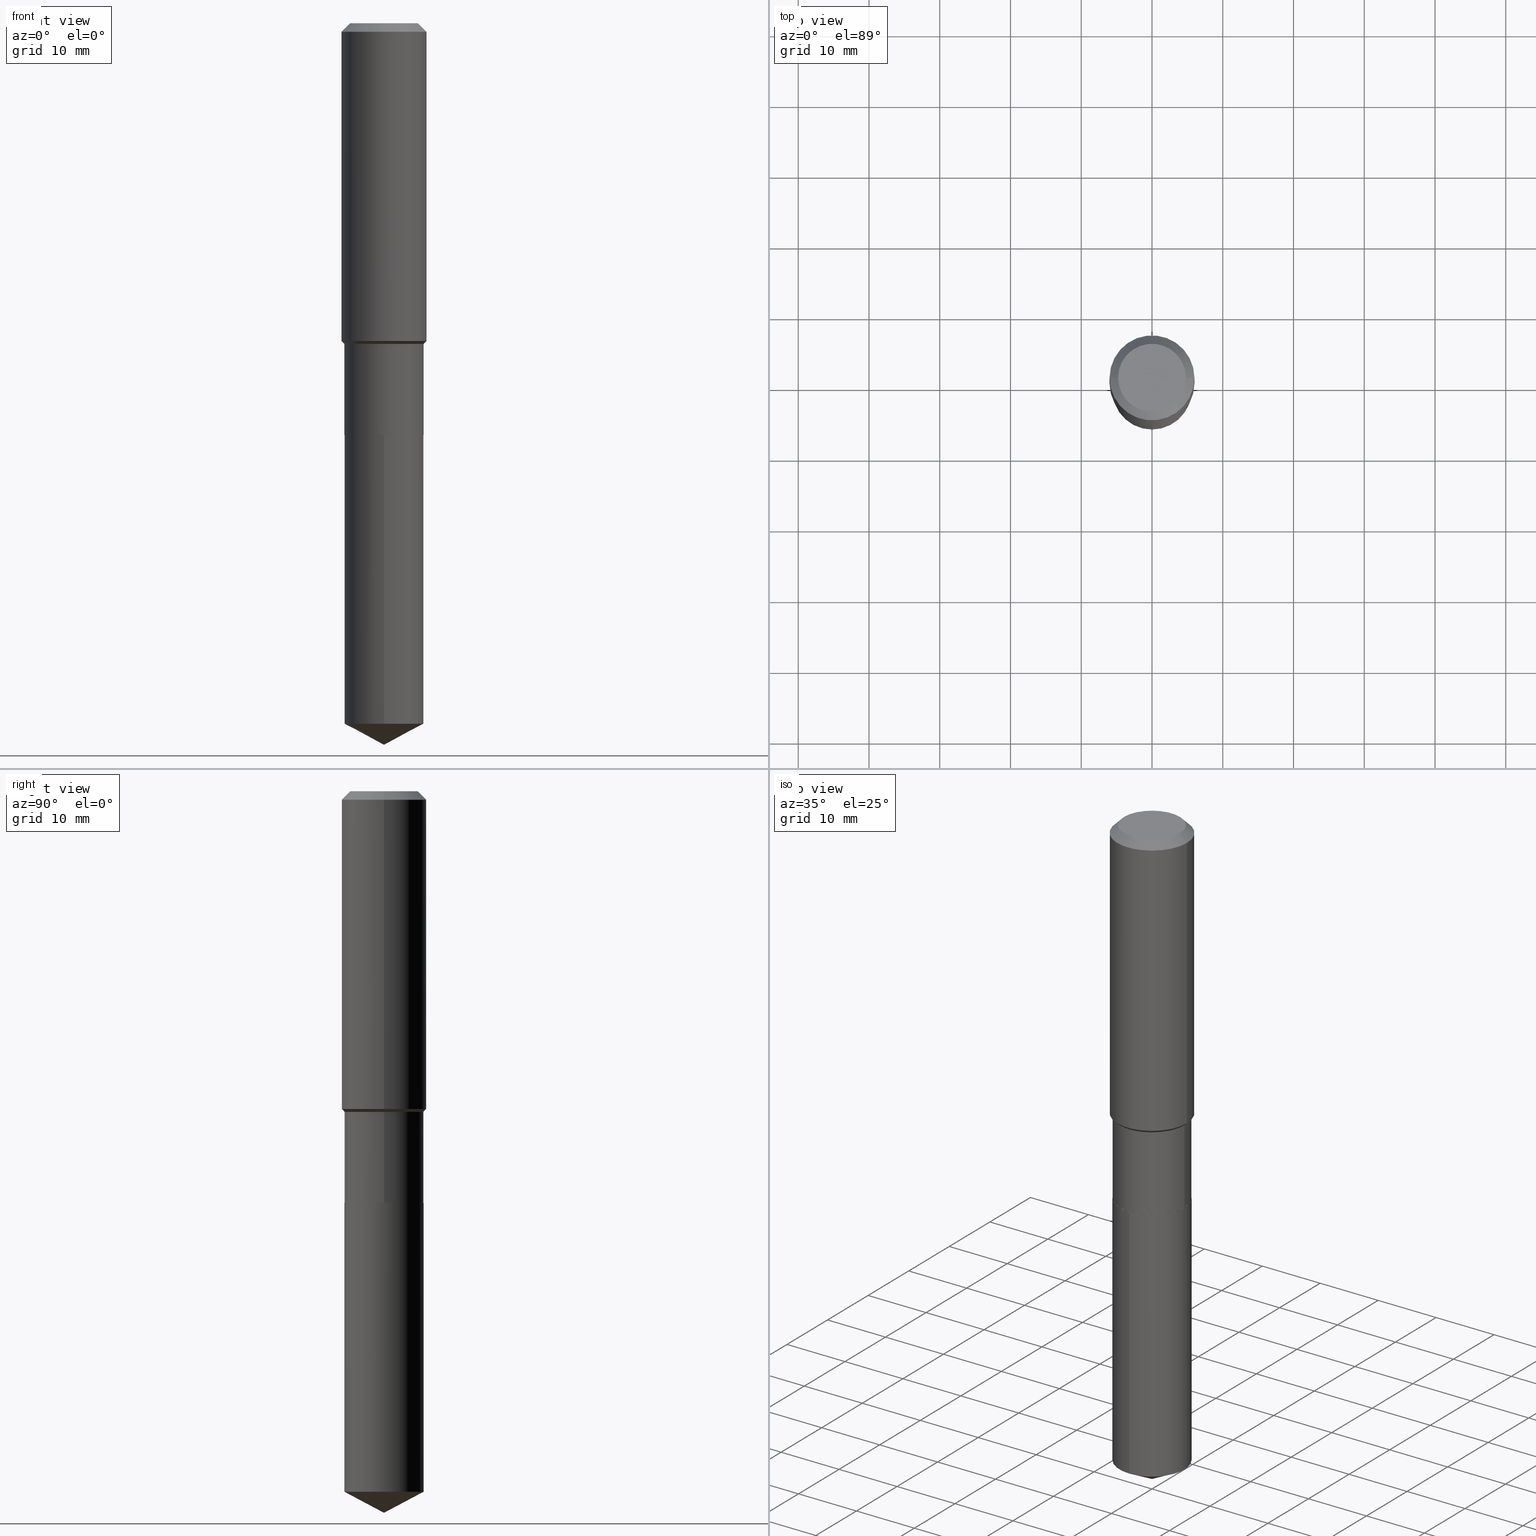
[diagram: canonical four-view strip — front | top / right | iso, engineering-drawing reading convention]
A machine part, canonical four-view strip (front | top / right | iso — engineering-drawing reading convention). The complete STEP part file that produces these views, byte-faithful:
ISO-10303-21;
HEADER;
FILE_DESCRIPTION (( 'STEP AP203' ),
    '1' );
FILE_NAME ('64682.STEP',
    '2024-04-24T18:45:47',
    ( '' ),
    ( '' ),
    'SwSTEP 2.0',
    'SolidWorks 2023',
    '' );
FILE_SCHEMA (( 'CONFIG_CONTROL_DESIGN' ));
ENDSEC;

DATA;
#1 = DIRECTION ( 'NONE',  ( 1.000000000000000000, -6.982962677686266711E-15, 4.876185090822587894E-29 ) ) ;
#2 = UNCERTAINTY_MEASURE_WITH_UNIT (LENGTH_MEASURE( 1.000000000000000082E-05 ), #104, 'distance_accuracy_value', 'NONE');
#3 = ORIENTED_EDGE ( 'NONE', *, *, #194, .T. ) ;
#4 = FACE_OUTER_BOUND ( 'NONE', #232, .T. ) ;
#5 = ADVANCED_FACE ( 'NONE', ( #22 ), #146, .T. ) ;
#6 = VERTEX_POINT ( 'NONE', #71 ) ;
#7 = CONICAL_SURFACE ( 'NONE', #475, 0.2199500000000000066, 0.7853981633975507526 ) ;
#8 = CIRCLE ( 'NONE', #236, 0.2361999999999999933 ) ;
#9 = LOCAL_TIME ( 14, 45, 47.00000000000000000, #110 ) ;
#10 = CYLINDRICAL_SURFACE ( 'NONE', #116, 0.2204500000000000071 ) ;
#11 = ORIENTED_EDGE ( 'NONE', *, *, #72, .T. ) ;
#12 = CARTESIAN_POINT ( 'NONE',  ( 5.603058128731384454E-29, -7.999682043557415076E-15, -2.291200000000000347 ) ) ;
#13 = EDGE_LOOP ( 'NONE', ( #173, #463, #206, #405 ) ) ;
#14 = DIRECTION ( 'NONE',  ( 0.7071067811866199593, -2.468850131083015945E-15, 0.7071067811864750752 ) ) ;
#15 = ORIENTED_EDGE ( 'NONE', *, *, #370, .F. ) ;
#16 = VECTOR ( 'NONE', #479, 39.37007874015748143 ) ;
#17 = AXIS2_PLACEMENT_3D ( 'NONE', #387, #237, #231 ) ;
#18 = CYLINDRICAL_SURFACE ( 'NONE', #69, 0.2362000000000001043 ) ;
#19 = DIRECTION ( 'NONE',  ( -2.445468806185136597E-29, 3.491481338843145583E-15, 1.000000000000000000 ) ) ;
#20 = CC_DESIGN_DATE_AND_TIME_ASSIGNMENT ( #98, #364, ( #318 ) ) ;
#21 = DIRECTION ( 'NONE',  ( -6.982962677686266711E-15, -1.000000000000000000, 3.717642994326508870E-15 ) ) ;
#22 = FACE_OUTER_BOUND ( 'NONE', #266, .T. ) ;
#23 = DIRECTION ( 'NONE',  ( -2.445387282739292518E-29, 3.491598085057620892E-15, 1.000000000000000000 ) ) ;
#24 = EDGE_CURVE ( 'NONE', #269, #6, #284, .T. ) ;
#25 = VECTOR ( 'NONE', #389, 39.37007874015748143 ) ;
#26 = PERSON_AND_ORGANIZATION_ROLE ( 'design_owner' ) ;
#27 = LINE ( 'NONE', #58, #16 ) ;
#28 =( NAMED_UNIT ( * ) SI_UNIT ( $, .STERADIAN. ) SOLID_ANGLE_UNIT ( ) );
#29 = VERTEX_POINT ( 'NONE', #290 ) ;
#30 = FACE_OUTER_BOUND ( 'NONE', #199, .T. ) ;
#31 = PERSON_AND_ORGANIZATION ( #182, #410 ) ;
#32 = CIRCLE ( 'NONE', #482, 0.1889600000000000168 ) ;
#33 = DIRECTION ( 'NONE',  ( -2.445468806185136597E-29, 3.491481338843145583E-15, 1.000000000000000000 ) ) ;
#34 = EDGE_CURVE ( 'NONE', #269, #419, #340, .T. ) ;
#35 = DIRECTION ( 'NONE',  ( 1.000000000000000000, -6.982962677686266711E-15, 0.000000000000000000 ) ) ;
#36 = CARTESIAN_POINT ( 'NONE',  ( -1.539394122295842009E-15, -0.2204500000000136350, -3.898484655790226849 ) ) ;
#37 = EDGE_CURVE ( 'NONE', #164, #29, #466, .T. ) ;
#38 = AXIS2_PLACEMENT_3D ( 'NONE', #99, #288, #109 ) ;
#39 = LINE ( 'NONE', #83, #308 ) ;
#40 = VECTOR ( 'NONE', #411, 39.37007874015748143 ) ;
#41 = ADVANCED_FACE ( 'NONE', ( #102 ), #7, .T. ) ;
#42 = CARTESIAN_POINT ( 'NONE',  ( 0.2204499999999999238, -7.768895127059877315E-15, -1.784200000000000008 ) ) ;
#43 = ORIENTED_EDGE ( 'NONE', *, *, #24, .F. ) ;
#44 = DIRECTION ( 'NONE',  ( -2.445468806185136597E-29, 3.491481338843145583E-15, 1.000000000000000000 ) ) ;
#45 = ORIENTED_EDGE ( 'NONE', *, *, #129, .F. ) ;
#46 = LINE ( 'NONE', #347, #153 ) ;
#47 = ORIENTED_EDGE ( 'NONE', *, *, #322, .T. ) ;
#48 = AXIS2_PLACEMENT_3D ( 'NONE', #88, #195, #1 ) ;
#49 = AXIS2_PLACEMENT_3D ( 'NONE', #335, #330, #189 ) ;
#50 = CC_DESIGN_APPROVAL ( #420, ( #223 ) ) ;
#51 = DIRECTION ( 'NONE',  ( 1.000000000000000000, -6.982962677686265133E-15, 0.000000000000000000 ) ) ;
#52 = ADVANCED_FACE ( 'NONE', ( #359 ), #84, .T. ) ;
#53 = ORIENTED_EDGE ( 'NONE', *, *, #407, .F. ) ;
#54 = EDGE_CURVE ( 'NONE', #419, #94, #27, .T. ) ;
#55 = DIRECTION ( 'NONE',  ( -2.445387282739292518E-29, 3.491598085057620892E-15, 1.000000000000000000 ) ) ;
#56 = VERTEX_POINT ( 'NONE', #144 ) ;
#57 = DIRECTION ( 'NONE',  ( -2.445468806185136597E-29, 3.491481338843145583E-15, 1.000000000000000000 ) ) ;
#58 = CARTESIAN_POINT ( 'NONE',  ( 0.2204499999999999793, -1.539394122295937264E-15, 1.074953170224213743E-29 ) ) ;
#59 = CC_DESIGN_PERSON_AND_ORGANIZATION_ASSIGNMENT ( #136, #279, ( #318 ) ) ;
#60 = AXIS2_PLACEMENT_3D ( 'NONE', #375, #226, #489 ) ;
#61 = CIRCLE ( 'NONE', #373, 0.2204500000000000071 ) ;
#62 = CARTESIAN_POINT ( 'NONE',  ( 5.601835394328292774E-29, -7.997936302887994361E-15, -2.290700000000000180 ) ) ;
#63 = DIRECTION ( 'NONE',  ( -2.445387282739292518E-29, 3.491598085057620892E-15, 1.000000000000000000 ) ) ;
#64 = ORIENTED_EDGE ( 'NONE', *, *, #256, .F. ) ;
#65 = PRODUCT_DEFINITION_SHAPE ( 'NONE', 'NONE',  #318 ) ;
#66 = DIRECTION ( 'NONE',  ( 1.000000000000000000, -6.982962677686266711E-15, 4.876176775795935793E-29 ) ) ;
#67 = DIRECTION ( 'NONE',  ( 6.273719981627762132E-15, 0.8829475928589292089, 0.4694715627858863094 ) ) ;
#68 = CONICAL_SURFACE ( 'NONE', #60, 0.2199500000000000066, 0.7853981633975507526 ) ;
#69 = AXIS2_PLACEMENT_3D ( 'NONE', #320, #57, #66 ) ;
#70 = CALENDAR_DATE ( 2024, 24, 4 ) ;
#71 = CARTESIAN_POINT ( 'NONE',  ( -0.2204499999999999238, -5.547327192842826592E-15, -1.784200000000000008 ) ) ;
#72 = EDGE_CURVE ( 'NONE', #56, #245, #467, .T. ) ;
#73 = APPROVAL_DATE_TIME ( #78, #420 ) ;
#74 = LINE ( 'NONE', #263, #229 ) ;
#75 = SHAPE_DEFINITION_REPRESENTATION ( #65, #171 ) ;
#76 = FACE_OUTER_BOUND ( 'NONE', #158, .T. ) ;
#77 = CC_DESIGN_PERSON_AND_ORGANIZATION_ASSIGNMENT ( #31, #224, ( #133 ) ) ;
#78 = DATE_AND_TIME ( #70, #427 ) ;
#79 = CONICAL_SURFACE ( 'NONE', #260, 74.04434902938341168, 1.082104136236485825 ) ;
#80 = DIRECTION ( 'NONE',  ( -0.7071067811866199593, 7.493145998870616062E-15, 0.7071067811864750752 ) ) ;
#81 = CARTESIAN_POINT ( 'NONE',  ( -4.713871149261273121E-47, 6.730158695841826722E-33, 1.927594061857931128E-18 ) ) ;
#82 = PERSON_AND_ORGANIZATION_ROLE ( 'design_supplier' ) ;
#83 = CARTESIAN_POINT ( 'NONE',  ( -0.2199500000000000066, -6.436843296253075656E-15, -2.291200000000000347 ) ) ;
#84 = CONICAL_SURFACE ( 'NONE', #357, 0.2361999999999999933, 0.7853981633974452814 ) ;
#85 = CARTESIAN_POINT ( 'NONE',  ( 0.000000000000000000, 0.000000000000000000, 0.000000000000000000 ) ) ;
#86 = FACE_OUTER_BOUND ( 'NONE', #429, .T. ) ;
#87 = ORIENTED_EDGE ( 'NONE', *, *, #281, .F. ) ;
#88 = CARTESIAN_POINT ( 'NONE',  ( -9.427742298522546243E-47, 1.346031739168365344E-32, 3.855188123715862256E-18 ) ) ;
#89 = ORIENTED_EDGE ( 'NONE', *, *, #337, .F. ) ;
#90 = EDGE_CURVE ( 'NONE', #238, #412, #378, .T. ) ;
#91 = CARTESIAN_POINT ( 'NONE',  ( -1.539394122295881453E-15, -0.2204500000000080007, -2.291199999999999459 ) ) ;
#92 = ORIENTED_EDGE ( 'NONE', *, *, #90, .T. ) ;
#93 = DIRECTION ( 'NONE',  ( -2.445468806185136597E-29, 3.491481338843145583E-15, 1.000000000000000000 ) ) ;
#94 = VERTEX_POINT ( 'NONE', #478 ) ;
#95 = APPROVAL_ROLE ( '' ) ;
#96 = ORIENTED_EDGE ( 'NONE', *, *, #301, .T. ) ;
#97 = EDGE_CURVE ( 'NONE', #126, #29, #212, .T. ) ;
#98 = DATE_AND_TIME ( #101, #436 ) ;
#99 = CARTESIAN_POINT ( 'NONE',  ( 9.533491585742809254E-29, -1.361167406985707085E-14, -3.898484655790227293 ) ) ;
#100 = ORIENTED_EDGE ( 'NONE', *, *, #37, .F. ) ;
#101 = CALENDAR_DATE ( 2024, 24, 4 ) ;
#102 = FACE_OUTER_BOUND ( 'NONE', #367, .T. ) ;
#103 = CC_DESIGN_PERSON_AND_ORGANIZATION_ASSIGNMENT ( #476, #26, ( #434 ) ) ;
#104 =( CONVERSION_BASED_UNIT ( 'INCH', #435 ) LENGTH_UNIT ( ) NAMED_UNIT ( #448 ) );
#105 = ADVANCED_FACE ( 'NONE', ( #177 ), #459, .T. ) ;
#106 = VERTEX_POINT ( 'NONE', #369 ) ;
#107 = CIRCLE ( 'NONE', #315, 0.2204500000000000071 ) ;
#108 = APPROVAL_PERSON_ORGANIZATION ( #178, #420, #289 ) ;
#109 = DIRECTION ( 'NONE',  ( -6.982962677686266711E-15, -1.000000000000000000, 2.478428662884339509E-15 ) ) ;
#110 = COORDINATED_UNIVERSAL_TIME_OFFSET ( 5, 0, .BEHIND. ) ;
#111 = DIRECTION ( 'NONE',  ( 1.000000000000000000, -6.982962677686266711E-15, 4.876185090822587894E-29 ) ) ;
#112 = EDGE_CURVE ( 'NONE', #142, #450, #32, .T. ) ;
#113 = DIRECTION ( 'NONE',  ( -2.445468806185136597E-29, 3.491481338843145583E-15, 1.000000000000000000 ) ) ;
#114 = ADVANCED_FACE ( 'NONE', ( #454 ), #490, .F. ) ;
#115 = CALENDAR_DATE ( 2024, 24, 4 ) ;
#116 = AXIS2_PLACEMENT_3D ( 'NONE', #264, #239, #270 ) ;
#117 = LINE ( 'NONE', #408, #349 ) ;
#118 = APPROVAL_PERSON_ORGANIZATION ( #398, #400, #95 ) ;
#119 = ORIENTED_EDGE ( 'NONE', *, *, #97, .T. ) ;
#120 = DIRECTION ( 'NONE',  ( 1.000000000000000000, -6.982962677686265133E-15, 0.000000000000000000 ) ) ;
#121 = LINE ( 'NONE', #167, #169 ) ;
#122 = CARTESIAN_POINT ( 'NONE',  ( 4.363205443995520859E-29, -6.229501004763940248E-15, -1.784200000000000008 ) ) ;
#123 = AXIS2_PLACEMENT_3D ( 'NONE', #455, #486, #120 ) ;
#124 = EDGE_LOOP ( 'NONE', ( #437, #168, #140, #469 ) ) ;
#125 = DIRECTION ( 'NONE',  ( 0.7071067811865453523, -7.319954787623248157E-15, -0.7071067811865496822 ) ) ;
#126 = VERTEX_POINT ( 'NONE', #376 ) ;
#127 = CARTESIAN_POINT ( 'NONE',  ( -8.645496137381040162E-28, 1.234435485964623192E-13, 35.35437874015748605 ) ) ;
#128 = ORIENTED_EDGE ( 'NONE', *, *, #34, .F. ) ;
#129 = EDGE_CURVE ( 'NONE', #142, #196, #117, .T. ) ;
#130 = DIRECTION ( 'NONE',  ( 1.000000000000000000, -6.982962677686265922E-15, 4.876176775795935793E-29 ) ) ;
#131 = EDGE_LOOP ( 'NONE', ( #89, #11, #3, #277 ) ) ;
#132 = AXIS2_PLACEMENT_3D ( 'NONE', #319, #471, #280 ) ;
#133 = SECURITY_CLASSIFICATION ( '', '', #368 ) ;
#134 = ADVANCED_FACE ( 'NONE', ( #30 ), #68, .T. ) ;
#135 = ORIENTED_EDGE ( 'NONE', *, *, #407, .T. ) ;
#136 = PERSON_AND_ORGANIZATION ( #182, #410 ) ;
#137 = EDGE_LOOP ( 'NONE', ( #53, #119, #100 ) ) ;
#138 = EDGE_CURVE ( 'NONE', #6, #56, #155, .T. ) ;
#139 =( NAMED_UNIT ( * ) PLANE_ANGLE_UNIT ( ) SI_UNIT ( $, .RADIAN. ) );
#140 = ORIENTED_EDGE ( 'NONE', *, *, #356, .F. ) ;
#141 = CIRCLE ( 'NONE', #170, 0.2204500000000000071 ) ;
#142 = VERTEX_POINT ( 'NONE', #298 ) ;
#143 = APPROVAL_STATUS ( 'not_yet_approved' ) ;
#144 = CARTESIAN_POINT ( 'NONE',  ( -0.2362000000000002153, -4.496208231811802153E-15, -1.768449999999999855 ) ) ;
#145 = DATE_AND_TIME ( #413, #9 ) ;
#146 = CYLINDRICAL_SURFACE ( 'NONE', #283, 0.2204500000000000071 ) ;
#147 = CARTESIAN_POINT ( 'NONE',  ( 1.155239464041865506E-30, -1.649375784469511859E-16, -0.04724000000000028177 ) ) ;
#148 = DIRECTION ( 'NONE',  ( 1.000000000000000000, -6.982962677686267499E-15, 0.000000000000000000 ) ) ;
#149 = DATE_AND_TIME ( #115, #332 ) ;
#150 = DIRECTION ( 'NONE',  ( -1.000000000000000000, 6.982962677686265922E-15, -4.876176775795935793E-29 ) ) ;
#151 = EDGE_LOOP ( 'NONE', ( #388, #47 ) ) ;
#152 = PERSON_AND_ORGANIZATION ( #182, #410 ) ;
#153 = VECTOR ( 'NONE', #14, 39.37007874015748143 ) ;
#154 = DIRECTION ( 'NONE',  ( -2.445468806185136877E-29, 3.491481338843145188E-15, 1.000000000000000000 ) ) ;
#155 = LINE ( 'NONE', #225, #40 ) ;
#156 = FACE_OUTER_BOUND ( 'NONE', #443, .T. ) ;
#157 = APPLICATION_CONTEXT ( 'configuration controlled 3d designs of mechanical parts and assemblies' ) ;
#158 = EDGE_LOOP ( 'NONE', ( #193, #241, #15, #87 ) ) ;
#159 = LINE ( 'NONE', #42, #341 ) ;
#160 = CC_DESIGN_PERSON_AND_ORGANIZATION_ASSIGNMENT ( #302, #82, ( #223 ) ) ;
#161 = AXIS2_PLACEMENT_3D ( 'NONE', #262, #113, #414 ) ;
#162 = ORIENTED_EDGE ( 'NONE', *, *, #112, .F. ) ;
#163 = DIRECTION ( 'NONE',  ( -2.445387282739292518E-29, 3.491598085057620892E-15, 1.000000000000000000 ) ) ;
#164 = VERTEX_POINT ( 'NONE', #36 ) ;
#165 = CARTESIAN_POINT ( 'NONE',  ( 0.2361999999999999933, -1.814313362916447440E-15, -0.04724000000000028177 ) ) ;
#166 = EDGE_LOOP ( 'NONE', ( #432, #314, #180, #45 ) ) ;
#167 = CARTESIAN_POINT ( 'NONE',  ( -0.2362000000000001043, 1.678301941865357380E-15, -1.161852468318209317E-29 ) ) ;
#168 = ORIENTED_EDGE ( 'NONE', *, *, #337, .T. ) ;
#169 = VECTOR ( 'NONE', #384, 39.37007874015748143 ) ;
#170 = AXIS2_PLACEMENT_3D ( 'NONE', #396, #216, #211 ) ;
#171 = ADVANCED_BREP_SHAPE_REPRESENTATION ( '64682', ( #344, #363, #417 ), #451 ) ;
#172 = CARTESIAN_POINT ( 'NONE',  ( 5.603058128731384454E-29, -7.999682043557415076E-15, -2.291200000000000347 ) ) ;
#173 = ORIENTED_EDGE ( 'NONE', *, *, #259, .T. ) ;
#174 = DIRECTION ( 'NONE',  ( -2.445468806185136597E-29, 3.491481338843145583E-15, 1.000000000000000000 ) ) ;
#175 = CARTESIAN_POINT ( 'NONE',  ( 5.603058128731384454E-29, -7.999682043557415076E-15, -2.291200000000000347 ) ) ;
#176 = APPROVAL_STATUS ( 'not_yet_approved' ) ;
#177 = FACE_OUTER_BOUND ( 'NONE', #166, .T. ) ;
#178 = PERSON_AND_ORGANIZATION ( #182, #410 ) ;
#179 = ORIENTED_EDGE ( 'NONE', *, *, #474, .F. ) ;
#180 = ORIENTED_EDGE ( 'NONE', *, *, #356, .T. ) ;
#181 = ADVANCED_FACE ( 'NONE', ( #76 ), #416, .T. ) ;
#182 = PERSON ( 'UNSPECIFIED', 'UNSPECIFIED', 'UNSPECIFIED', ('UNSPECIFIED'), ('UNSPECIFIED'), ('UNSPECIFIED') ) ;
#183 = APPROVAL_STATUS ( 'not_yet_approved' ) ;
#184 = CYLINDRICAL_SURFACE ( 'NONE', #386, 0.2362000000000001043 ) ;
#185 = APPLICATION_CONTEXT ( 'configuration controlled 3d designs of mechanical parts and assemblies' ) ;
#186 = CIRCLE ( 'NONE', #294, 0.2204500000000000071 ) ;
#187 = DIRECTION ( 'NONE',  ( -2.445468806185136597E-29, 3.491481338843145583E-15, 1.000000000000000000 ) ) ;
#188 = CARTESIAN_POINT ( 'NONE',  ( 5.603058128731384454E-29, -7.999682043557415076E-15, -2.291200000000000347 ) ) ;
#189 = DIRECTION ( 'NONE',  ( 6.982962677686265922E-15, 1.000000000000000000, -3.491598085057620892E-15 ) ) ;
#190 = ADVANCED_FACE ( 'NONE', ( #257 ), #304, .F. ) ;
#191 = DIRECTION ( 'NONE',  ( -2.445387282739292518E-29, 3.491598085057620892E-15, 1.000000000000000000 ) ) ;
#192 = FACE_OUTER_BOUND ( 'NONE', #137, .T. ) ;
#193 = ORIENTED_EDGE ( 'NONE', *, *, #205, .T. ) ;
#194 = EDGE_CURVE ( 'NONE', #245, #299, #74, .T. ) ;
#195 = DIRECTION ( 'NONE',  ( -2.445468806185136597E-29, 3.491481338843145583E-15, 1.000000000000000000 ) ) ;
#196 = VERTEX_POINT ( 'NONE', #303 ) ;
#197 = CYLINDRICAL_SURFACE ( 'NONE', #449, 0.2204499999999999793 ) ;
#198 = CIRCLE ( 'NONE', #123, 0.2204499999999999238 ) ;
#199 = EDGE_LOOP ( 'NONE', ( #243, #312, #251, #128 ) ) ;
#200 = AXIS2_PLACEMENT_3D ( 'NONE', #428, #93, #305 ) ;
#201 = CARTESIAN_POINT ( 'NONE',  ( 4.363205443995520859E-29, -6.229501004763940248E-15, -1.784200000000000008 ) ) ;
#202 = ORIENTED_EDGE ( 'NONE', *, *, #259, .F. ) ;
#203 = CYLINDRICAL_SURFACE ( 'NONE', #200, 0.2204499999999999793 ) ;
#204 = ORIENTED_EDGE ( 'NONE', *, *, #474, .T. ) ;
#205 = EDGE_CURVE ( 'NONE', #94, #6, #198, .T. ) ;
#206 = ORIENTED_EDGE ( 'NONE', *, *, #205, .F. ) ;
#207 = VECTOR ( 'NONE', #67, 39.37007874015748854 ) ;
#208 = CARTESIAN_POINT ( 'NONE',  ( 5.603058128731384454E-29, -7.999682043557415076E-15, -2.291200000000000347 ) ) ;
#209 = DIRECTION ( 'NONE',  ( -6.982962677686266711E-15, -1.000000000000000000, 3.717642994326508870E-15 ) ) ;
#210 = PRODUCT_RELATED_PRODUCT_CATEGORY ( 'detail', '', ( #434 ) ) ;
#211 = DIRECTION ( 'NONE',  ( -6.982962677686266711E-15, -1.000000000000000000, 2.478428662884339509E-15 ) ) ;
#212 = LINE ( 'NONE', #362, #207 ) ;
#213 = COORDINATED_UNIVERSAL_TIME_OFFSET ( 5, 0, .BEHIND. ) ;
#214 = DIRECTION ( 'NONE',  ( 2.445468806185136597E-29, -3.491481338843145583E-15, -1.000000000000000000 ) ) ;
#215 = AXIS2_PLACEMENT_3D ( 'NONE', #127, #311, #272 ) ;
#216 = DIRECTION ( 'NONE',  ( -2.445387282739292518E-29, 3.491598085057620892E-15, 1.000000000000000000 ) ) ;
#217 = DIRECTION ( 'NONE',  ( -2.445468806185136877E-29, 3.491481338843145188E-15, 1.000000000000000000 ) ) ;
#218 = EDGE_CURVE ( 'NONE', #412, #269, #39, .T. ) ;
#219 = PERSON_AND_ORGANIZATION_ROLE ( 'creator' ) ;
#220 = CARTESIAN_POINT ( 'NONE',  ( 0.000000000000000000, 0.000000000000000000, 0.000000000000000000 ) ) ;
#221 = DIRECTION ( 'NONE',  ( -1.000000000000000000, 6.982962677686266711E-15, 0.000000000000000000 ) ) ;
#222 = VECTOR ( 'NONE', #163, 39.37007874015748143 ) ;
#223 = PRODUCT_DEFINITION_FORMATION_WITH_SPECIFIED_SOURCE ( 'ANY', '', #434, .NOT_KNOWN. ) ;
#224 = PERSON_AND_ORGANIZATION_ROLE ( 'classification_officer' ) ;
#225 = CARTESIAN_POINT ( 'NONE',  ( -0.2204499999999999238, -4.663109543780799930E-15, -1.784200000000000008 ) ) ;
#226 = DIRECTION ( 'NONE',  ( -2.445468806185136597E-29, 3.491481338843145583E-15, 1.000000000000000000 ) ) ;
#227 = APPROVAL_DATE_TIME ( #149, #297 ) ;
#228 = CARTESIAN_POINT ( 'NONE',  ( -8.645496137381040162E-28, 1.234435485964623192E-13, 35.35437874015748605 ) ) ;
#229 = VECTOR ( 'NONE', #154, 39.37007874015748143 ) ;
#230 = CARTESIAN_POINT ( 'NONE',  ( 1.155239464041865506E-30, -1.649375784469511859E-16, -0.04724000000000028177 ) ) ;
#231 = DIRECTION ( 'NONE',  ( 1.000000000000000000, -6.982962677686266711E-15, 0.000000000000000000 ) ) ;
#232 = EDGE_LOOP ( 'NONE', ( #43, #271, #461, #235 ) ) ;
#233 = ADVANCED_FACE ( 'NONE', ( #258 ), #79, .T. ) ;
#234 = LINE ( 'NONE', #268, #222 ) ;
#235 = ORIENTED_EDGE ( 'NONE', *, *, #377, .F. ) ;
#236 = AXIS2_PLACEMENT_3D ( 'NONE', #230, #381, #345 ) ;
#237 = DIRECTION ( 'NONE',  ( -2.445468806185136597E-29, 3.491481338843145583E-15, 1.000000000000000000 ) ) ;
#238 = VERTEX_POINT ( 'NONE', #343 ) ;
#239 = DIRECTION ( 'NONE',  ( -2.445387282739292518E-29, 3.491598085057620892E-15, 1.000000000000000000 ) ) ;
#240 = ADVANCED_FACE ( 'NONE', ( #406 ), #184, .T. ) ;
#241 = ORIENTED_EDGE ( 'NONE', *, *, #138, .T. ) ;
#242 = CARTESIAN_POINT ( 'NONE',  ( 0.000000000000000000, 0.000000000000000000, 0.000000000000000000 ) ) ;
#243 = ORIENTED_EDGE ( 'NONE', *, *, #218, .F. ) ;
#244 = FACE_OUTER_BOUND ( 'NONE', #124, .T. ) ;
#245 = VERTEX_POINT ( 'NONE', #371 ) ;
#246 = VECTOR ( 'NONE', #125, 39.37007874015748143 ) ;
#247 = AXIS2_PLACEMENT_3D ( 'NONE', #122, #174, #358 ) ;
#248 = EDGE_CURVE ( 'NONE', #196, #299, #404, .T. ) ;
#249 = APPLICATION_PROTOCOL_DEFINITION ( 'international standard', 'config_control_design', 1994, #185 ) ;
#250 = CARTESIAN_POINT ( 'NONE',  ( 4.324689310298104338E-29, -6.174510173677160125E-15, -1.768449999999999855 ) ) ;
#251 = ORIENTED_EDGE ( 'NONE', *, *, #393, .T. ) ;
#252 = APPLICATION_PROTOCOL_DEFINITION ( 'international standard', 'config_control_design', 1994, #157 ) ;
#253 = ORIENTED_EDGE ( 'NONE', *, *, #248, .T. ) ;
#254 = AXIS2_PLACEMENT_3D ( 'NONE', #250, #19, #399 ) ;
#255 = DIRECTION ( 'NONE',  ( -6.982962677686265133E-15, -1.000000000000000000, 3.541896320645566785E-15 ) ) ;
#256 = EDGE_CURVE ( 'NONE', #412, #238, #331, .T. ) ;
#257 = FACE_OUTER_BOUND ( 'NONE', #441, .T. ) ;
#258 = FACE_OUTER_BOUND ( 'NONE', #465, .T. ) ;
#259 = EDGE_CURVE ( 'NONE', #419, #269, #107, .T. ) ;
#260 = AXIS2_PLACEMENT_3D ( 'NONE', #228, #191, #255 ) ;
#261 = APPROVAL_PERSON_ORGANIZATION ( #152, #297, #452 ) ;
#262 = CARTESIAN_POINT ( 'NONE',  ( 4.363205443995520859E-29, -6.229501004763940248E-15, -1.784200000000000008 ) ) ;
#263 = CARTESIAN_POINT ( 'NONE',  ( 0.2362000000000001043, -1.649375784469496920E-15, 1.151752954443000508E-29 ) ) ;
#264 = CARTESIAN_POINT ( 'NONE',  ( 5.603058128731384454E-29, -7.999682043557415076E-15, -2.291200000000000347 ) ) ;
#265 = EDGE_CURVE ( 'NONE', #450, #299, #445, .T. ) ;
#266 = EDGE_LOOP ( 'NONE', ( #382, #348, #96, #273 ) ) ;
#267 = CONICAL_SURFACE ( 'NONE', #247, 0.2204499999999999238, 0.7853981633974492782 ) ;
#268 = CARTESIAN_POINT ( 'NONE',  ( 1.566391460983196722E-15, 0.2204499999999920135, -2.291200000000000792 ) ) ;
#269 = VERTEX_POINT ( 'NONE', #354 ) ;
#270 = DIRECTION ( 'NONE',  ( -6.982962677686266711E-15, -1.000000000000000000, 3.717642994326508870E-15 ) ) ;
#271 = ORIENTED_EDGE ( 'NONE', *, *, #34, .T. ) ;
#272 = DIRECTION ( 'NONE',  ( -6.982962677686265133E-15, -1.000000000000000000, 3.541896320645566785E-15 ) ) ;
#273 = ORIENTED_EDGE ( 'NONE', *, *, #481, .F. ) ;
#274 = ADVANCED_FACE ( 'NONE', ( #4 ), #197, .T. ) ;
#275 = AXIS2_PLACEMENT_3D ( 'NONE', #325, #339, #221 ) ;
#276 = FACE_OUTER_BOUND ( 'NONE', #13, .T. ) ;
#277 = ORIENTED_EDGE ( 'NONE', *, *, #248, .F. ) ;
#278 = ORIENTED_EDGE ( 'NONE', *, *, #281, .T. ) ;
#279 = PERSON_AND_ORGANIZATION_ROLE ( 'creator' ) ;
#280 = DIRECTION ( 'NONE',  ( 1.000000000000000000, -6.982962677686265133E-15, 0.000000000000000000 ) ) ;
#281 = EDGE_CURVE ( 'NONE', #94, #245, #159, .T. ) ;
#282 = DIRECTION ( 'NONE',  ( 0.000000000000000000, 0.000000000000000000, 1.000000000000000000 ) ) ;
#283 = AXIS2_PLACEMENT_3D ( 'NONE', #175, #23, #209 ) ;
#284 = LINE ( 'NONE', #291, #433 ) ;
#285 = CIRCLE ( 'NONE', #293, 0.2204499999999999238 ) ;
#286 = CC_DESIGN_SECURITY_CLASSIFICATION ( #133, ( #223 ) ) ;
#287 = COORDINATED_UNIVERSAL_TIME_OFFSET ( 5, 0, .BEHIND. ) ;
#288 = DIRECTION ( 'NONE',  ( -2.445387282739292518E-29, 3.491598085057620892E-15, 1.000000000000000000 ) ) ;
#289 = APPROVAL_ROLE ( '' ) ;
#290 = CARTESIAN_POINT ( 'NONE',  ( 1.566391460983236165E-15, 0.2204499999999864068, -3.898484655790228182 ) ) ;
#291 = CARTESIAN_POINT ( 'NONE',  ( -0.2204499999999999793, 1.566391460983140713E-15, -1.084379240646693833E-29 ) ) ;
#292 = CLOSED_SHELL ( 'NONE', ( #41, #105, #487, #181, #457, #274, #468, #240, #52, #114, #453, #134 ) ) ;
#293 = AXIS2_PLACEMENT_3D ( 'NONE', #201, #44, #51 ) ;
#294 = AXIS2_PLACEMENT_3D ( 'NONE', #172, #361, #430 ) ;
#295 = DIRECTION ( 'NONE',  ( 1.000000000000000000, -6.982962677686265133E-15, 0.000000000000000000 ) ) ;
#296 = DIRECTION ( 'NONE',  ( -0.7071067811865453523, 2.468850131082234184E-15, -0.7071067811865496822 ) ) ;
#297 = APPROVAL ( #183, 'UNSPECIFIED' ) ;
#298 = CARTESIAN_POINT ( 'NONE',  ( -0.1889600000000000168, 1.401969416799070942E-15, 3.855188123706346622E-18 ) ) ;
#299 = VERTEX_POINT ( 'NONE', #165 ) ;
#300 = CIRCLE ( 'NONE', #48, 0.1889600000000000168 ) ;
#301 = EDGE_CURVE ( 'NONE', #164, #106, #418, .T. ) ;
#302 = PERSON_AND_ORGANIZATION ( #182, #410 ) ;
#303 = CARTESIAN_POINT ( 'NONE',  ( -0.2361999999999999933, -1.491421934196697942E-15, -0.04724000000000028177 ) ) ;
#304 = PLANE ( 'NONE',  #49 ) ;
#305 = DIRECTION ( 'NONE',  ( 1.000000000000000000, -6.982962677686265922E-15, 4.876176775795934672E-29 ) ) ;
#306 = EDGE_CURVE ( 'NONE', #29, #439, #234, .T. ) ;
#307 = EDGE_LOOP ( 'NONE', ( #317, #162, #385, #253 ) ) ;
#308 = VECTOR ( 'NONE', #80, 39.37007874015748143 ) ;
#309 = CARTESIAN_POINT ( 'NONE',  ( 0.2361999999999999933, -1.785387205520586782E-15, -0.04724000000000028177 ) ) ;
#310 = ORIENTED_EDGE ( 'NONE', *, *, #377, .T. ) ;
#311 = DIRECTION ( 'NONE',  ( -2.445387282739292518E-29, 3.491598085057620892E-15, 1.000000000000000000 ) ) ;
#312 = ORIENTED_EDGE ( 'NONE', *, *, #256, .T. ) ;
#313 = DIRECTION ( 'NONE',  ( -2.438088387897960049E-29, 3.491481338843145188E-15, 1.000000000000000000 ) ) ;
#314 = ORIENTED_EDGE ( 'NONE', *, *, #265, .T. ) ;
#315 = AXIS2_PLACEMENT_3D ( 'NONE', #334, #484, #148 ) ;
#316 = DIRECTION ( 'NONE',  ( -2.445468806185136597E-29, 3.491481338843145583E-15, 1.000000000000000000 ) ) ;
#317 = ORIENTED_EDGE ( 'NONE', *, *, #265, .F. ) ;
#318 = PRODUCT_DEFINITION ( 'UNKNOWN', '', #223, #336 ) ;
#319 = CARTESIAN_POINT ( 'NONE',  ( 5.603058128731384454E-29, -7.999682043557415076E-15, -2.291200000000000347 ) ) ;
#320 = CARTESIAN_POINT ( 'NONE',  ( 0.000000000000000000, 0.000000000000000000, 0.000000000000000000 ) ) ;
#321 = DIRECTION ( 'NONE',  ( -2.445468806185136597E-29, 3.491481338843145583E-15, 1.000000000000000000 ) ) ;
#322 = EDGE_CURVE ( 'NONE', #450, #142, #300, .T. ) ;
#323 = MECHANICAL_CONTEXT ( 'NONE', #157, 'mechanical' ) ;
#324 = AXIS2_PLACEMENT_3D ( 'NONE', #81, #444, #150 ) ;
#325 = CARTESIAN_POINT ( 'NONE',  ( 1.155239464041865506E-30, -1.649375784469511859E-16, -0.04724000000000028177 ) ) ;
#326 = AXIS2_PLACEMENT_3D ( 'NONE', #147, #33, #35 ) ;
#327 = DIRECTION ( 'NONE',  ( -2.445468806185136597E-29, 3.491481338843145583E-15, 1.000000000000000000 ) ) ;
#328 = ADVANCED_FACE ( 'NONE', ( #86 ), #10, .T. ) ;
#329 = EDGE_LOOP ( 'NONE', ( #425, #310, #278, #351 ) ) ;
#330 = DIRECTION ( 'NONE',  ( 2.445387282739291958E-29, -3.491598085057620892E-15, -1.000000000000000000 ) ) ;
#331 = CIRCLE ( 'NONE', #395, 0.2199500000000000066 ) ;
#332 = LOCAL_TIME ( 14, 45, 47.00000000000000000, #446 ) ;
#333 = CC_DESIGN_PERSON_AND_ORGANIZATION_ASSIGNMENT ( #485, #219, ( #223 ) ) ;
#334 = CARTESIAN_POINT ( 'NONE',  ( 5.601835394328292774E-29, -7.997936302887994361E-15, -2.290700000000000180 ) ) ;
#335 = CARTESIAN_POINT ( 'NONE',  ( 5.603058128731384454E-29, -7.999682043557415076E-15, -2.291200000000000347 ) ) ;
#336 = DESIGN_CONTEXT ( 'detailed design', #185, 'design' ) ;
#337 = EDGE_CURVE ( 'NONE', #56, #196, #121, .T. ) ;
#338 = DATE_TIME_ROLE ( 'classification_date' ) ;
#339 = DIRECTION ( 'NONE',  ( 2.445468806185136597E-29, -3.491481338843145583E-15, -1.000000000000000000 ) ) ;
#340 = CIRCLE ( 'NONE', #403, 0.2204500000000000071 ) ;
#341 = VECTOR ( 'NONE', #460, 39.37007874015748143 ) ;
#342 = LOCAL_TIME ( 14, 45, 47.00000000000000000, #287 ) ;
#343 = CARTESIAN_POINT ( 'NONE',  ( 0.2199500000000000066, -9.535584684514509925E-15, -2.291200000000000347 ) ) ;
#344 = MANIFOLD_SOLID_BREP ( 'Body-Move/Copy2[1]', #394 ) ;
#345 = DIRECTION ( 'NONE',  ( 1.000000000000000000, -6.982962677686266711E-15, 0.000000000000000000 ) ) ;
#346 = ORIENTED_EDGE ( 'NONE', *, *, #90, .F. ) ;
#347 = CARTESIAN_POINT ( 'NONE',  ( 0.2199500000000000066, -9.535584684514509925E-15, -2.291200000000000347 ) ) ;
#348 = ORIENTED_EDGE ( 'NONE', *, *, #488, .T. ) ;
#349 = VECTOR ( 'NONE', #296, 39.37007874015748143 ) ;
#350 = DIRECTION ( 'NONE',  ( 1.000000000000000000, -6.982962677686265922E-15, 4.876176775795934672E-29 ) ) ;
#351 = ORIENTED_EDGE ( 'NONE', *, *, #72, .F. ) ;
#352 = PLANE ( 'NONE',  #365 ) ;
#353 = ORIENTED_EDGE ( 'NONE', *, *, #481, .T. ) ;
#354 = CARTESIAN_POINT ( 'NONE',  ( -0.2204500000000000071, -5.547327192842825803E-15, -2.290700000000000180 ) ) ;
#355 = ORIENTED_EDGE ( 'NONE', *, *, #97, .F. ) ;
#356 = EDGE_CURVE ( 'NONE', #299, #196, #8, .T. ) ;
#357 = AXIS2_PLACEMENT_3D ( 'NONE', #392, #214, #473 ) ;
#358 = DIRECTION ( 'NONE',  ( 1.000000000000000000, -6.982962677686265133E-15, 0.000000000000000000 ) ) ;
#359 = FACE_OUTER_BOUND ( 'NONE', #307, .T. ) ;
#360 = ORIENTED_EDGE ( 'NONE', *, *, #393, .F. ) ;
#361 = DIRECTION ( 'NONE',  ( -2.445387282739292518E-29, 3.491598085057620892E-15, 1.000000000000000000 ) ) ;
#362 = CARTESIAN_POINT ( 'NONE',  ( 9.820318560128989494E-29, -1.402067545231267641E-14, -4.015699999999999825 ) ) ;
#363 = MANIFOLD_SOLID_BREP ( 'Body-Move/Copy2[2]', #292 ) ;
#364 = DATE_TIME_ROLE ( 'creation_date' ) ;
#365 = AXIS2_PLACEMENT_3D ( 'NONE', #12, #313, #130 ) ;
#366 = DIRECTION ( 'NONE',  ( 1.000000000000000000, -6.982962677686267499E-15, 0.000000000000000000 ) ) ;
#367 = EDGE_LOOP ( 'NONE', ( #92, #397, #202, #360 ) ) ;
#368 = SECURITY_CLASSIFICATION_LEVEL ( 'unclassified' ) ;
#369 = CARTESIAN_POINT ( 'NONE',  ( -1.539394122295881453E-15, -0.2204500000000080007, -2.291199999999999459 ) ) ;
#370 = EDGE_CURVE ( 'NONE', #245, #56, #442, .T. ) ;
#371 = CARTESIAN_POINT ( 'NONE',  ( 0.2362000000000002153, -7.823885958146657439E-15, -1.768449999999999855 ) ) ;
#372 = VECTOR ( 'NONE', #55, 39.37007874015748143 ) ;
#373 = AXIS2_PLACEMENT_3D ( 'NONE', #208, #63, #21 ) ;
#374 = DIRECTION ( 'NONE',  ( -2.445468806185136597E-29, 3.491481338843145583E-15, 1.000000000000000000 ) ) ;
#375 = CARTESIAN_POINT ( 'NONE',  ( 5.603058128731384454E-29, -7.999682043557415076E-15, -2.291200000000000347 ) ) ;
#376 = CARTESIAN_POINT ( 'NONE',  ( 9.819941711296176556E-29, -1.402121043016588762E-14, -4.015699999999999825 ) ) ;
#377 = EDGE_CURVE ( 'NONE', #6, #94, #285, .T. ) ;
#378 = CIRCLE ( 'NONE', #132, 0.2199500000000000066 ) ;
#379 = CC_DESIGN_APPROVAL ( #297, ( #133 ) ) ;
#380 = CARTESIAN_POINT ( 'NONE',  ( -0.2199500000000000066, -6.434194069078964455E-15, -2.291200000000000347 ) ) ;
#381 = DIRECTION ( 'NONE',  ( -2.445468806185136597E-29, 3.491481338843145583E-15, 1.000000000000000000 ) ) ;
#382 = ORIENTED_EDGE ( 'NONE', *, *, #306, .F. ) ;
#383 = CC_DESIGN_DATE_AND_TIME_ASSIGNMENT ( #145, #338, ( #133 ) ) ;
#384 = DIRECTION ( 'NONE',  ( -2.445468806185136877E-29, 3.491481338843145188E-15, 1.000000000000000000 ) ) ;
#385 = ORIENTED_EDGE ( 'NONE', *, *, #129, .T. ) ;
#386 = AXIS2_PLACEMENT_3D ( 'NONE', #220, #483, #409 ) ;
#387 = CARTESIAN_POINT ( 'NONE',  ( 4.324689310298104338E-29, -6.174510173677160125E-15, -1.768449999999999855 ) ) ;
#388 = ORIENTED_EDGE ( 'NONE', *, *, #112, .T. ) ;
#389 = DIRECTION ( 'NONE',  ( -6.165590087286832085E-15, -0.8829475928589258782, 0.4694715627858925822 ) ) ;
#390 = ORIENTED_EDGE ( 'NONE', *, *, #306, .T. ) ;
#391 = DIRECTION ( 'NONE',  ( 1.000000000000000000, 0.000000000000000000, 0.000000000000000000 ) ) ;
#392 = CARTESIAN_POINT ( 'NONE',  ( 1.155239464041865506E-30, -1.649375784469511859E-16, -0.04724000000000028177 ) ) ;
#393 = EDGE_CURVE ( 'NONE', #238, #419, #46, .T. ) ;
#394 = CLOSED_SHELL ( 'NONE', ( #328, #423, #233, #5, #190 ) ) ;
#395 = AXIS2_PLACEMENT_3D ( 'NONE', #188, #187, #295 ) ;
#396 = CARTESIAN_POINT ( 'NONE',  ( 9.533491585742809254E-29, -1.361167406985707085E-14, -3.898484655790227293 ) ) ;
#397 = ORIENTED_EDGE ( 'NONE', *, *, #218, .T. ) ;
#398 = PERSON_AND_ORGANIZATION ( #182, #410 ) ;
#399 = DIRECTION ( 'NONE',  ( 1.000000000000000000, -6.982962677686266711E-15, 0.000000000000000000 ) ) ;
#400 = APPROVAL ( #176, 'UNSPECIFIED' ) ;
#401 = DATE_AND_TIME ( #470, #342 ) ;
#402 = DIRECTION ( 'NONE',  ( 1.000000000000000000, -6.982962677686265133E-15, 0.000000000000000000 ) ) ;
#403 = AXIS2_PLACEMENT_3D ( 'NONE', #62, #327, #366 ) ;
#404 = CIRCLE ( 'NONE', #326, 0.2361999999999999933 ) ;
#405 = ORIENTED_EDGE ( 'NONE', *, *, #54, .F. ) ;
#406 = FACE_OUTER_BOUND ( 'NONE', #131, .T. ) ;
#407 = EDGE_CURVE ( 'NONE', #126, #164, #462, .T. ) ;
#408 = CARTESIAN_POINT ( 'NONE',  ( -0.2361999999999999933, 1.484438206022545019E-15, -0.04724000000000028177 ) ) ;
#409 = DIRECTION ( 'NONE',  ( 1.000000000000000000, -6.982962677686266711E-15, 4.876176775795935793E-29 ) ) ;
#410 = ORGANIZATION ( 'UNSPECIFIED', 'UNSPECIFIED', '' ) ;
#411 = DIRECTION ( 'NONE',  ( -0.7071067811865482389, 7.493145998870357316E-15, 0.7071067811865467956 ) ) ;
#412 = VERTEX_POINT ( 'NONE', #380 ) ;
#413 = CALENDAR_DATE ( 2024, 24, 4 ) ;
#414 = DIRECTION ( 'NONE',  ( 1.000000000000000000, -6.982962677686265133E-15, 0.000000000000000000 ) ) ;
#415 = CARTESIAN_POINT ( 'NONE',  ( 9.819941711296176556E-29, -1.402121043016588762E-14, -4.015699999999999825 ) ) ;
#416 = CONICAL_SURFACE ( 'NONE', #161, 0.2204499999999999238, 0.7853981633974492782 ) ;
#417 = AXIS2_PLACEMENT_3D ( 'NONE', #242, #282, #391 ) ;
#418 = LINE ( 'NONE', #91, #372 ) ;
#419 = VERTEX_POINT ( 'NONE', #421 ) ;
#420 = APPROVAL ( #143, 'UNSPECIFIED' ) ;
#421 = CARTESIAN_POINT ( 'NONE',  ( 0.2204500000000000071, -9.537330425183932217E-15, -2.290700000000000180 ) ) ;
#422 = ORIENTED_EDGE ( 'NONE', *, *, #301, .F. ) ;
#423 = ADVANCED_FACE ( 'NONE', ( #192 ), #426, .T. ) ;
#424 = CARTESIAN_POINT ( 'NONE',  ( 1.566391460983236559E-15, 0.2204499999999920135, -2.291200000000000792 ) ) ;
#425 = ORIENTED_EDGE ( 'NONE', *, *, #138, .F. ) ;
#426 = CONICAL_SURFACE ( 'NONE', #215, 74.04434902938341168, 1.082104136236485825 ) ;
#427 = LOCAL_TIME ( 14, 45, 47.00000000000000000, #440 ) ;
#428 = CARTESIAN_POINT ( 'NONE',  ( 0.000000000000000000, 0.000000000000000000, 0.000000000000000000 ) ) ;
#429 = EDGE_LOOP ( 'NONE', ( #431, #390, #179, #422 ) ) ;
#430 = DIRECTION ( 'NONE',  ( -6.982962677686266711E-15, -1.000000000000000000, 3.717642994326508870E-15 ) ) ;
#431 = ORIENTED_EDGE ( 'NONE', *, *, #37, .T. ) ;
#432 = ORIENTED_EDGE ( 'NONE', *, *, #322, .F. ) ;
#433 = VECTOR ( 'NONE', #217, 39.37007874015748143 ) ;
#434 = PRODUCT ( '64682', '64682', '', ( #323 ) ) ;
#435 = LENGTH_MEASURE_WITH_UNIT ( LENGTH_MEASURE( 0.02539999999999999897 ), #472 );
#436 = LOCAL_TIME ( 14, 45, 47.00000000000000000, #213 ) ;
#437 = ORIENTED_EDGE ( 'NONE', *, *, #370, .T. ) ;
#438 = APPROVAL_DATE_TIME ( #401, #400 ) ;
#439 = VERTEX_POINT ( 'NONE', #424 ) ;
#440 = COORDINATED_UNIVERSAL_TIME_OFFSET ( 5, 0, .BEHIND. ) ;
#441 = EDGE_LOOP ( 'NONE', ( #204, #353 ) ) ;
#442 = CIRCLE ( 'NONE', #17, 0.2362000000000002153 ) ;
#443 = EDGE_LOOP ( 'NONE', ( #346, #64 ) ) ;
#444 = DIRECTION ( 'NONE',  ( 2.438088387897960049E-29, -3.491481338843145188E-15, -1.000000000000000000 ) ) ;
#445 = LINE ( 'NONE', #309, #246 ) ;
#446 = COORDINATED_UNIVERSAL_TIME_OFFSET ( 5, 0, .BEHIND. ) ;
#447 = CARTESIAN_POINT ( 'NONE',  ( -9.427742298522546243E-47, 1.346031739168365344E-32, 3.855188123715862256E-18 ) ) ;
#448 = DIMENSIONAL_EXPONENTS ( 1.000000000000000000, 0.000000000000000000, 0.000000000000000000, 0.000000000000000000, 0.000000000000000000, 0.000000000000000000, 0.000000000000000000 ) ;
#449 = AXIS2_PLACEMENT_3D ( 'NONE', #85, #316, #350 ) ;
#450 = VERTEX_POINT ( 'NONE', #464 ) ;
#451 =( GEOMETRIC_REPRESENTATION_CONTEXT ( 3 ) GLOBAL_UNCERTAINTY_ASSIGNED_CONTEXT ( ( #2 ) ) GLOBAL_UNIT_ASSIGNED_CONTEXT ( ( #104, #139, #28 ) ) REPRESENTATION_CONTEXT ( 'NONE', 'WORKASPACE' ) );
#452 = APPROVAL_ROLE ( '' ) ;
#453 = ADVANCED_FACE ( 'NONE', ( #156 ), #352, .F. ) ;
#454 = FACE_OUTER_BOUND ( 'NONE', #151, .T. ) ;
#455 = CARTESIAN_POINT ( 'NONE',  ( 4.363205443995520859E-29, -6.229501004763940248E-15, -1.784200000000000008 ) ) ;
#456 = FACE_OUTER_BOUND ( 'NONE', #329, .T. ) ;
#457 = ADVANCED_FACE ( 'NONE', ( #276 ), #203, .T. ) ;
#458 = ORIENTED_EDGE ( 'NONE', *, *, #488, .F. ) ;
#459 = CONICAL_SURFACE ( 'NONE', #275, 0.2361999999999999933, 0.7853981633974452814 ) ;
#460 = DIRECTION ( 'NONE',  ( 0.7071067811865482389, -2.468850131082264555E-15, 0.7071067811865467956 ) ) ;
#461 = ORIENTED_EDGE ( 'NONE', *, *, #54, .T. ) ;
#462 = LINE ( 'NONE', #415, #25 ) ;
#463 = ORIENTED_EDGE ( 'NONE', *, *, #24, .T. ) ;
#464 = CARTESIAN_POINT ( 'NONE',  ( 0.1889600000000000168, -1.540873453589747738E-15, 3.855188123725863225E-18 ) ) ;
#465 = EDGE_LOOP ( 'NONE', ( #355, #135, #458 ) ) ;
#466 = CIRCLE ( 'NONE', #38, 0.2204500000000000071 ) ;
#467 = CIRCLE ( 'NONE', #254, 0.2362000000000002153 ) ;
#468 = ADVANCED_FACE ( 'NONE', ( #456 ), #267, .T. ) ;
#469 = ORIENTED_EDGE ( 'NONE', *, *, #194, .F. ) ;
#470 = CALENDAR_DATE ( 2024, 24, 4 ) ;
#471 = DIRECTION ( 'NONE',  ( -2.445468806185136597E-29, 3.491481338843145583E-15, 1.000000000000000000 ) ) ;
#472 =( LENGTH_UNIT ( ) NAMED_UNIT ( * ) SI_UNIT ( $, .METRE. ) );
#473 = DIRECTION ( 'NONE',  ( -1.000000000000000000, 6.982962677686266711E-15, 0.000000000000000000 ) ) ;
#474 = EDGE_CURVE ( 'NONE', #106, #439, #61, .T. ) ;
#475 = AXIS2_PLACEMENT_3D ( 'NONE', #480, #321, #402 ) ;
#476 = PERSON_AND_ORGANIZATION ( #182, #410 ) ;
#477 = CC_DESIGN_APPROVAL ( #400, ( #318 ) ) ;
#478 = CARTESIAN_POINT ( 'NONE',  ( 0.2204499999999999238, -7.768895127059877315E-15, -1.784200000000000008 ) ) ;
#479 = DIRECTION ( 'NONE',  ( -2.445468806185136877E-29, 3.491481338843145188E-15, 1.000000000000000000 ) ) ;
#480 = CARTESIAN_POINT ( 'NONE',  ( 5.603058128731384454E-29, -7.999682043557415076E-15, -2.291200000000000347 ) ) ;
#481 = EDGE_CURVE ( 'NONE', #439, #106, #186, .T. ) ;
#482 = AXIS2_PLACEMENT_3D ( 'NONE', #447, #374, #111 ) ;
#483 = DIRECTION ( 'NONE',  ( -2.445468806185136597E-29, 3.491481338843145583E-15, 1.000000000000000000 ) ) ;
#484 = DIRECTION ( 'NONE',  ( -2.445468806185136597E-29, 3.491481338843145583E-15, 1.000000000000000000 ) ) ;
#485 = PERSON_AND_ORGANIZATION ( #182, #410 ) ;
#486 = DIRECTION ( 'NONE',  ( -2.445468806185136597E-29, 3.491481338843145583E-15, 1.000000000000000000 ) ) ;
#487 = ADVANCED_FACE ( 'NONE', ( #244 ), #18, .T. ) ;
#488 = EDGE_CURVE ( 'NONE', #29, #164, #141, .T. ) ;
#489 = DIRECTION ( 'NONE',  ( 1.000000000000000000, -6.982962677686265133E-15, 0.000000000000000000 ) ) ;
#490 = PLANE ( 'NONE',  #324 ) ;
ENDSEC;
END-ISO-10303-21;
